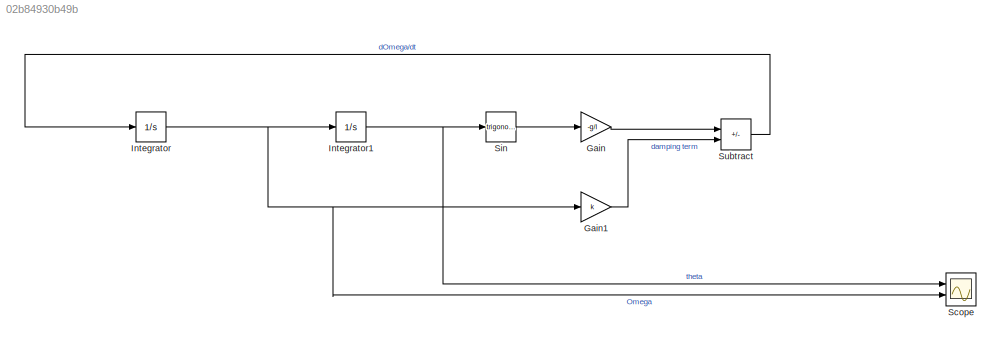
MODEL slx_02b84930b49b
KIND model
CONFIG AbsTol = auto
CONFIG EnableMultiTasking = off
CONFIG FixedStep = auto
CONFIG MaxStep = auto
CONFIG MinStep = auto
CONFIG RelTol = 1e-3
CONFIG SampleTimeConstraint = Unconstrained
CONFIG SolverName = VariableStepAuto
CONFIG StartTime = 0.0
CONFIG StopTime = 10
BLOCK [Gain] Gain
  Gain = -g/l
BLOCK [Gain] Gain1
  Gain = k
BLOCK [Integrator] Integrator
  InitialCondition = w
  Ports = [1, 1]
BLOCK [Integrator] Integrator1
  InitialCondition = theta
  Ports = [1, 1]
BLOCK [Scope] Scope
  Floating = off
  NumInputPorts = 2
  Ports = [2]
  ScopeSpecificationString = Simulink.scopes.TimeScopeBlockCfg('CurrentConfiguration', extmgr.ConfigurationSet(extmgr.Configuration('Core','General UI',true),extmgr.Configuration('Core','Source UI',true),extmgr.Configuration('Sources','WiredSimulink',true),extmgr.Configuration('Visuals','Time Domain',true,'SerializedDisplays',{struct('MinYLimReal','-1.2563','MaxYLimReal','1.39254','YLabelReal','','MinYLimMag','0.00000','MaxYL...<+1998ch>
BLOCK [Trigonometry] Sin
  Ports = [1, 1]
BLOCK [Sum] Subtract
  IconShape = rectangular
  Inputs = +-
  Ports = [2, 1]
LINE Gain1:1 -> Subtract:2
LINE Gain:1 -> Subtract:1
NET Integrator1:1 -> Scope:1, Sin:1
NET Integrator:1 -> Gain1:1, Integrator1:1, Scope:2
LINE Sin:1 -> Gain:1
LINE Subtract:1 -> Integrator:1
note: NET lines group one-source signal fan-out (src -> all destinations, sorted); 1:1 wires keep LINE
